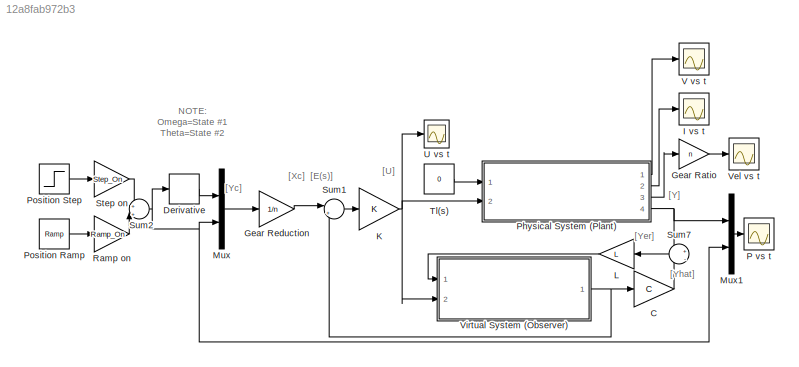
MODEL slx_12a8fab972b3
KIND model
BLOCK [Gain] C
  Gain = C
  Multiplication = Matrix(K*u)
  OutDataTypeStr = Inherit: Inherit via internal rule
  ParamDataTypeStr = Inherit: Inherit via internal rule
  SaturateOnIntegerOverflow = off
BLOCK [Derivative] Derivative
BLOCK [Gain] Gear Ratio
  Gain = n
  OutDataTypeStr = Inherit: Inherit via internal rule
  ParamDataTypeStr = Inherit: Inherit via internal rule
  SaturateOnIntegerOverflow = off
BLOCK [Gain] Gear Reduction
  Gain = 1/n
  OutDataTypeStr = Inherit: Inherit via internal rule
  ParamDataTypeStr = Inherit: Inherit via internal rule
  SaturateOnIntegerOverflow = off
BLOCK [Scope] I vs t
  Floating = off
  NumInputPorts = 1
  Ports = [1]
  SaveName = Current
  SaveToWorkspace = on
  ShowLegends = off
BLOCK [Gain] K
  Gain = K
  Multiplication = Matrix(K*u)
  OutDataTypeStr = Inherit: Inherit via internal rule
  ParamDataTypeStr = Inherit: Inherit via internal rule
  SaturateOnIntegerOverflow = off
BLOCK [Gain] L
  Gain = L
  OutDataTypeStr = Inherit: Inherit via internal rule
  ParamDataTypeStr = Inherit: Inherit via internal rule
  SaturateOnIntegerOverflow = off
BLOCK [Mux] Mux
  DisplayOption = bar
  Inputs = 2
  Ports = [2, 1]
BLOCK [Mux] Mux1
  DisplayOption = bar
  Inputs = 2
  Ports = [2, 1]
BLOCK [Scope] P vs t
  Floating = off
  NumInputPorts = 1
  Ports = [1]
  SaveName = Position
  SaveToWorkspace = on
  ShowLegends = off
  ZoomMode = yonly
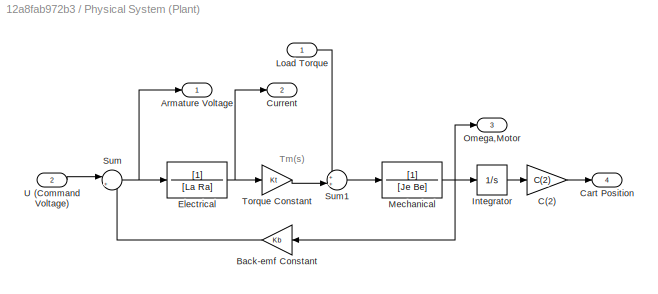
BLOCK [SubSystem] Physical System (Plant)
  Ports = [2, 4]
  RequestExecContextInheritance = off
BLOCK [Outport] Physical System (Plant)/Armature Voltage
  IconDisplay = Port number
BLOCK [Gain] Physical System (Plant)/Back-emf Constant
  Gain = Kb
  OutDataTypeStr = Inherit: Inherit via internal rule
  ParamDataTypeStr = Inherit: Inherit via internal rule
  SaturateOnIntegerOverflow = off
BLOCK [Gain] Physical System (Plant)/C(2)
  Gain = C(2)
  OutDataTypeStr = Inherit: Inherit via internal rule
  ParamDataTypeStr = Inherit: Inherit via internal rule
  SaturateOnIntegerOverflow = off
BLOCK [Outport] Physical System (Plant)/Cart Position
  IconDisplay = Port number
  Port = 4
BLOCK [Outport] Physical System (Plant)/Current
  IconDisplay = Port number
  Port = 2
BLOCK [TransferFcn] Physical System (Plant)/Electrical
  Denominator = [La Ra]
BLOCK [Integrator] Physical System (Plant)/Integrator
  Ports = [1, 1]
BLOCK [Inport] Physical System (Plant)/Load Torque
  IconDisplay = Port number
BLOCK [TransferFcn] Physical System (Plant)/Mechanical
  Denominator = [Je Be]
BLOCK [Outport] Physical System (Plant)/Omega,Motor
  IconDisplay = Port number
  Port = 3
BLOCK [Sum] Physical System (Plant)/Sum
  IconShape = round
  InputSameDT = off
  Inputs = |+-
  OutDataTypeStr = Inherit: Inherit via internal rule
  Ports = [2, 1]
  SaturateOnIntegerOverflow = off
BLOCK [Sum] Physical System (Plant)/Sum1
  IconShape = round
  InputSameDT = off
  Inputs = ++|
  OutDataTypeStr = Inherit: Inherit via internal rule
  Ports = [2, 1]
  SaturateOnIntegerOverflow = off
BLOCK [Gain] Physical System (Plant)/Torque Constant
  Gain = Kt
  OutDataTypeStr = Inherit: Inherit via internal rule
  ParamDataTypeStr = Inherit: Inherit via internal rule
  SaturateOnIntegerOverflow = off
BLOCK [Inport] Physical System (Plant)/U (Command Voltage)
  IconDisplay = Port number
  Port = 2
BLOCK [Reference] Position Ramp  REF=simulink/Sources/Ramp
  Ports = [0, 1]
  SourceBlock = simulink/Sources/Ramp
  SourceType = Ramp
  VectorParams1D = on
  X0 = 0
  slope = ramp
  start = 0
BLOCK [Step] Position Step
  After = pos
  SampleTime = SampleTime
  Time = 0
BLOCK [Gain] Ramp on
  Gain = Ramp_On
  OutDataTypeStr = Inherit: Inherit via internal rule
  ParamDataTypeStr = Inherit: Inherit via internal rule
  SaturateOnIntegerOverflow = off
BLOCK [Gain] Step on
  Gain = Step_On
  OutDataTypeStr = Inherit: Inherit via internal rule
  ParamDataTypeStr = Inherit: Inherit via internal rule
  SaturateOnIntegerOverflow = off
BLOCK [Sum] Sum1
  IconShape = round
  InputSameDT = off
  Inputs = |+-
  OutDataTypeStr = Inherit: Inherit via internal rule
  Ports = [2, 1]
  SaturateOnIntegerOverflow = off
BLOCK [Sum] Sum2
  IconShape = round
  InputSameDT = off
  Inputs = +|+
  OutDataTypeStr = Inherit: Inherit via internal rule
  Ports = [2, 1]
  SaturateOnIntegerOverflow = off
BLOCK [Sum] Sum7
  IconShape = round
  InputSameDT = off
  Inputs = +|-
  OutDataTypeStr = Inherit: Inherit via internal rule
  Ports = [2, 1]
  SaturateOnIntegerOverflow = off
BLOCK [Constant] Tl(s)
  Value = 0
BLOCK [Scope] U vs t
  Floating = off
  NumInputPorts = 1
  Ports = [1]
  SaveName = ScopeData4
  ShowLegends = off
  ZoomMode = yonly
BLOCK [Scope] V vs t
  Floating = off
  NumInputPorts = 1
  Ports = [1]
  SaveName = Voltage
  SaveToWorkspace = on
  ShowLegends = off
  ZoomMode = yonly
BLOCK [Scope] Vel vs t
  Floating = off
  NumInputPorts = 1
  Ports = [1]
  SaveName = ScopeData3
  ShowLegends = off
  ZoomMode = yonly
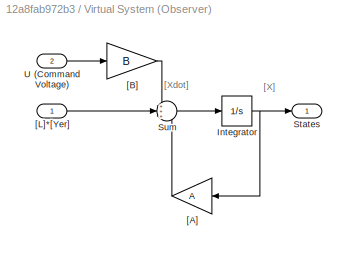
BLOCK [SubSystem] Virtual System (Observer)
  Ports = [2, 1]
  RequestExecContextInheritance = off
BLOCK [Integrator] Virtual System (Observer)/Integrator
  Ports = [1, 1]
BLOCK [Outport] Virtual System (Observer)/States
  IconDisplay = Port number
BLOCK [Sum] Virtual System (Observer)/Sum
  IconShape = round
  InputSameDT = off
  Inputs = +++
  OutDataTypeStr = Inherit: Inherit via internal rule
  Ports = [3, 1]
  SaturateOnIntegerOverflow = off
BLOCK [Inport] Virtual System (Observer)/U (Command Voltage)
  IconDisplay = Port number
  Port = 2
BLOCK [Gain] Virtual System (Observer)/[A]
  Gain = A
  Multiplication = Matrix(K*u)
  OutDataTypeStr = Inherit: Inherit via internal rule
  ParamDataTypeStr = Inherit: Inherit via internal rule
  SaturateOnIntegerOverflow = off
BLOCK [Gain] Virtual System (Observer)/[B]
  Gain = B
  Multiplication = Matrix(K*u)
  OutDataTypeStr = Inherit: Inherit via internal rule
  ParamDataTypeStr = Inherit: Inherit via internal rule
  SaturateOnIntegerOverflow = off
BLOCK [Inport] Virtual System (Observer)/[L]*[Yer]
  IconDisplay = Port number
ANNOTATION (root): NOTE: Omega=State #1 Theta=State #2
ANNOTATION (root): [E(s)]
ANNOTATION (root): [U]
ANNOTATION (root): [Xc]
ANNOTATION (root): [Y]
ANNOTATION (root): [Yc]
ANNOTATION (root): [Yer]
ANNOTATION (root): [Yhat]
ANNOTATION Physical System (Plant): Tm(s)
ANNOTATION Virtual System (Observer): [X]
ANNOTATION Virtual System (Observer): [Xdot]
LINE C:1 -> Sum7:2
LINE Derivative:1 -> Mux:1
LINE Gear Ratio:1 -> Vel vs t:1
LINE Gear Reduction:1 -> Sum1:1
NET K:1 -> Physical System (Plant):2, U vs t:1, Virtual System (Observer):2
LINE L:1 -> Virtual System (Observer):1
LINE Mux1:1 -> P vs t:1
LINE Mux:1 -> Gear Reduction:1
LINE Physical System (Plant)/Back-emf Constant:1 -> Physical System (Plant)/Sum:2
LINE Physical System (Plant)/C(2):1 -> Physical System (Plant)/Cart Position:1
NET Physical System (Plant)/Electrical:1 -> Physical System (Plant)/Current:1, Physical System (Plant)/Torque Constant:1
LINE Physical System (Plant)/Integrator:1 -> Physical System (Plant)/C(2):1
LINE Physical System (Plant)/Load Torque:1 -> Physical System (Plant)/Sum1:1
NET Physical System (Plant)/Mechanical:1 -> Physical System (Plant)/Back-emf Constant:1, Physical System (Plant)/Integrator:1, Physical System (Plant)/Omega,Motor:1
LINE Physical System (Plant)/Sum1:1 -> Physical System (Plant)/Mechanical:1
NET Physical System (Plant)/Sum:1 -> Physical System (Plant)/Armature Voltage:1, Physical System (Plant)/Electrical:1
LINE Physical System (Plant)/Torque Constant:1 -> Physical System (Plant)/Sum1:2
LINE Physical System (Plant)/U (Command Voltage):1 -> Physical System (Plant)/Sum:1
LINE Physical System (Plant):1 -> V vs t:1
LINE Physical System (Plant):2 -> I vs t:1
LINE Physical System (Plant):3 -> Gear Ratio:1
NET Physical System (Plant):4 -> Mux1:1, Sum7:1
LINE Position Ramp:1 -> Ramp on:1
LINE Position Step:1 -> Step on:1
LINE Ramp on:1 -> Sum2:2
LINE Step on:1 -> Sum2:1
LINE Sum1:1 -> K:1
NET Sum2:1 -> Derivative:1, Mux1:2, Mux:2
LINE Sum7:1 -> L:1
LINE Tl(s):1 -> Physical System (Plant):1
NET Virtual System (Observer)/Integrator:1 -> Virtual System (Observer)/States:1, Virtual System (Observer)/[A]:1
LINE Virtual System (Observer)/Sum:1 -> Virtual System (Observer)/Integrator:1
LINE Virtual System (Observer)/U (Command Voltage):1 -> Virtual System (Observer)/[B]:1
LINE Virtual System (Observer)/[A]:1 -> Virtual System (Observer)/Sum:3
LINE Virtual System (Observer)/[B]:1 -> Virtual System (Observer)/Sum:1
LINE Virtual System (Observer)/[L]*[Yer]:1 -> Virtual System (Observer)/Sum:2
NET Virtual System (Observer):1 -> C:1, Sum1:2
note: NET lines group one-source signal fan-out (src -> all destinations, sorted); 1:1 wires keep LINE
